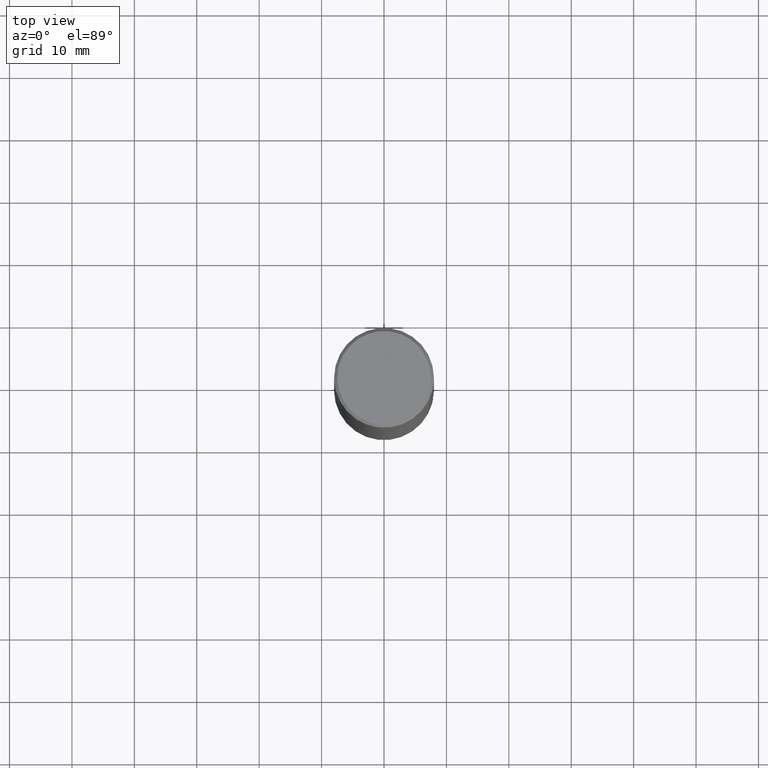
[diagram: clean part render]
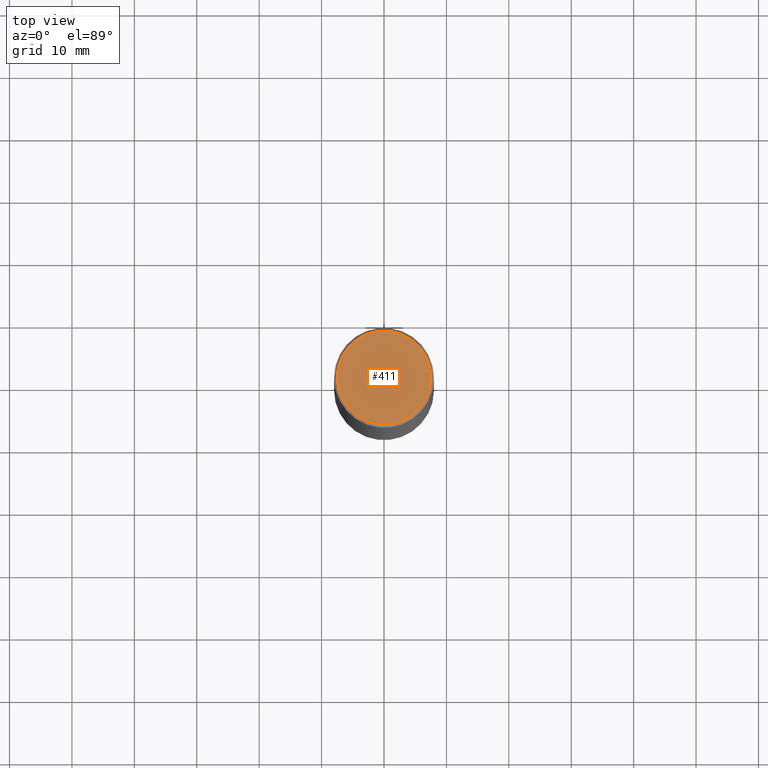
[diagram: same view with one face highlighted and labeled with its STEP entity id]
A machine part, top view. The second image highlights one B-rep face of the part: STEP entity #411.
In plain terms, the highlighted planar face has unit normal (0, -0, -1).
Its self-contained STEP definition (entity closure, byte-faithful):
#8 = VERTEX_POINT ( 'NONE', #82 ) ;
#82 = CARTESIAN_POINT ( 'NONE',  ( -0.2949499999999997679, 2.094539655171994924E-15, 1.835460370743031619E-16 ) ) ;
#86 = ORIENTED_EDGE ( 'NONE', *, *, #171, .T. ) ;
#100 = FACE_OUTER_BOUND ( 'NONE', #261, .T. ) ;
#106 = CARTESIAN_POINT ( 'NONE',  ( -4.488561081641444621E-45, 6.408475632635922878E-31, 1.835460370743176819E-16 ) ) ;
#136 = AXIS2_PLACEMENT_3D ( 'NONE', #376, #304, #217 ) ;
#149 = CIRCLE ( 'NONE', #336, 0.2949499999999997679 ) ;
#171 = EDGE_CURVE ( 'NONE', #332, #8, #205, .T. ) ;
#190 = PLANE ( 'NONE',  #403 ) ;
#205 = CIRCLE ( 'NONE', #136, 0.2949499999999997679 ) ;
#217 = DIRECTION ( 'NONE',  ( 1.000000000000000000, -6.982962677686265922E-15, 4.874125435057325556E-29 ) ) ;
#223 = DIRECTION ( 'NONE',  ( -2.445468806185136597E-29, 3.491481338843145583E-15, 1.000000000000000000 ) ) ;
#251 = CARTESIAN_POINT ( 'NONE',  ( 2.059624841783562486E-15, 0.2949499999999997679, -9.380394023546260134E-16 ) ) ;
#261 = EDGE_LOOP ( 'NONE', ( #274, #86 ) ) ;
#274 = ORIENTED_EDGE ( 'NONE', *, *, #392, .T. ) ;
#304 = DIRECTION ( 'NONE',  ( -2.445468806185136597E-29, 3.491481338843145583E-15, 1.000000000000000000 ) ) ;
#314 = DIRECTION ( 'NONE',  ( 2.438088387897960049E-29, -3.491481338843145188E-15, -1.000000000000000000 ) ) ;
#318 = CARTESIAN_POINT ( 'NONE',  ( 0.2949499999999997679, -2.127023677808858891E-15, 1.835460370743323251E-16 ) ) ;
#332 = VERTEX_POINT ( 'NONE', #318 ) ;
#336 = AXIS2_PLACEMENT_3D ( 'NONE', #106, #223, #382 ) ;
#376 = CARTESIAN_POINT ( 'NONE',  ( -4.488561081641444621E-45, 6.408475632635922878E-31, 1.835460370743176819E-16 ) ) ;
#382 = DIRECTION ( 'NONE',  ( 1.000000000000000000, -6.982962677686265922E-15, 4.874125435057325556E-29 ) ) ;
#387 = DIRECTION ( 'NONE',  ( -1.000000000000000000, 6.982962677686265922E-15, -4.876176775795935793E-29 ) ) ;
#392 = EDGE_CURVE ( 'NONE', #8, #332, #149, .T. ) ;
#403 = AXIS2_PLACEMENT_3D ( 'NONE', #251, #314, #387 ) ;
#411 = ADVANCED_FACE ( 'NONE', ( #100 ), #190, .F. ) ;